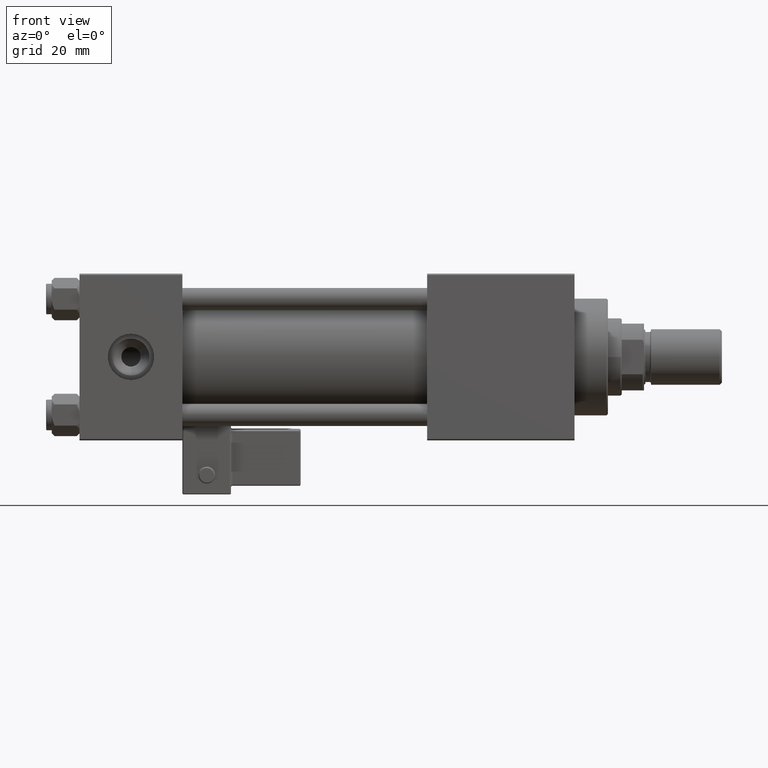
[diagram: clean part render]
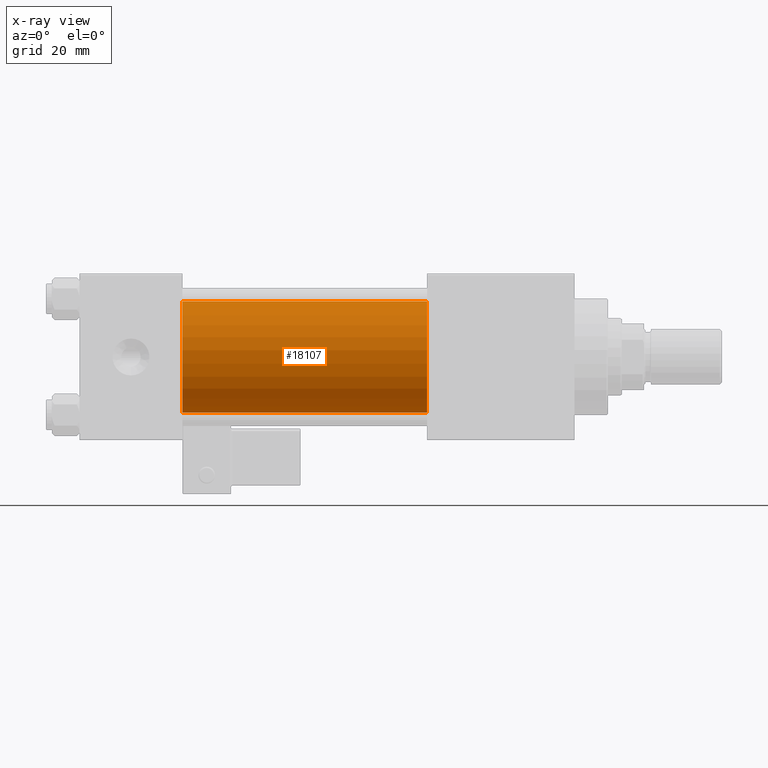
[diagram: x-ray — body ghosted, one internal face saturated and labeled with its STEP entity id]
A machine part, front view, then the same camera in x-ray: the body is ghosted and one INTERNAL B-rep face — a face not visible from any outside direction — is saturated and labeled: STEP entity #18107.
In plain terms, the highlighted cylindrical surface (partial cylindrical patch) has radius 20 mm, axis along (-1, -0, -0).
Its self-contained STEP definition (entity closure, byte-faithful):
#1995 = VERTEX_POINT ( 'NONE', #15800 ) ;
#4890 = EDGE_CURVE ( 'NONE', #8780, #49778, #27839, .T. ) ;
#6723 = CYLINDRICAL_SURFACE ( 'NONE', #21969, 20.00000000000000000 ) ;
#7074 = ORIENTED_EDGE ( 'NONE', *, *, #4890, .T. ) ;
#7643 = CARTESIAN_POINT ( 'NONE',  ( 125.0000000000000000, -2.602085213965210642E-15, 20.00000000000000000 ) ) ;
#8086 = DIRECTION ( 'NONE',  ( 0.000000000000000000, 0.000000000000000000, -1.000000000000000000 ) ) ;
#8780 = VERTEX_POINT ( 'NONE', #7643 ) ;
#8995 = DIRECTION ( 'NONE',  ( -1.000000000000000000, -0.000000000000000000, -0.000000000000000000 ) ) ;
#12078 = ORIENTED_EDGE ( 'NONE', *, *, #50577, .T. ) ;
#15800 = CARTESIAN_POINT ( 'NONE',  ( 37.00000000000000000, -1.527916156705042519E-16, -20.00000000000000000 ) ) ;
#17025 = CARTESIAN_POINT ( 'NONE',  ( 125.0000000000000000, -2.602085213965210642E-15, 20.00000000000000000 ) ) ;
#17953 = CARTESIAN_POINT ( 'NONE',  ( 125.0000000000000000, -1.527916156705042519E-16, -20.00000000000000000 ) ) ;
#18107 = ADVANCED_FACE ( 'NONE', ( #38226 ), #6723, .F. ) ;
#20194 = DIRECTION ( 'NONE',  ( 1.000000000000000000, 0.000000000000000000, 0.000000000000000000 ) ) ;
#21965 = CARTESIAN_POINT ( 'NONE',  ( 125.0000000000000000, -1.527916156705042519E-16, -20.00000000000000000 ) ) ;
#21969 = AXIS2_PLACEMENT_3D ( 'NONE', #42225, #35033, #26222 ) ;
#22237 = LINE ( 'NONE', #21965, #46019 ) ;
#25260 = DIRECTION ( 'NONE',  ( 0.000000000000000000, 0.000000000000000000, -1.000000000000000000 ) ) ;
#26222 = DIRECTION ( 'NONE',  ( 0.000000000000000000, 0.000000000000000000, 1.000000000000000000 ) ) ;
#27839 = CIRCLE ( 'NONE', #39810, 20.00000000000000000 ) ;
#28293 = ORIENTED_EDGE ( 'NONE', *, *, #37845, .F. ) ;
#28908 = CARTESIAN_POINT ( 'NONE',  ( 37.00000000000000000, -2.602085213965210642E-15, 0.000000000000000000 ) ) ;
#30127 = ORIENTED_EDGE ( 'NONE', *, *, #40865, .F. ) ;
#31162 = AXIS2_PLACEMENT_3D ( 'NONE', #28908, #48689, #8086 ) ;
#33470 = DIRECTION ( 'NONE',  ( -1.000000000000000000, -0.000000000000000000, -0.000000000000000000 ) ) ;
#35033 = DIRECTION ( 'NONE',  ( -1.000000000000000000, -0.000000000000000000, -0.000000000000000000 ) ) ;
#37845 = EDGE_CURVE ( 'NONE', #38606, #1995, #48195, .T. ) ;
#38226 = FACE_OUTER_BOUND ( 'NONE', #50678, .T. ) ;
#38606 = VERTEX_POINT ( 'NONE', #49800 ) ;
#39810 = AXIS2_PLACEMENT_3D ( 'NONE', #45796, #20194, #25260 ) ;
#40865 = EDGE_CURVE ( 'NONE', #8780, #38606, #41060, .T. ) ;
#41060 = LINE ( 'NONE', #17025, #48145 ) ;
#42225 = CARTESIAN_POINT ( 'NONE',  ( 125.0000000000000000, -2.602085213965210642E-15, 0.000000000000000000 ) ) ;
#45796 = CARTESIAN_POINT ( 'NONE',  ( 125.0000000000000000, -2.602085213965210642E-15, 0.000000000000000000 ) ) ;
#46019 = VECTOR ( 'NONE', #33470, 1000.000000000000000 ) ;
#48145 = VECTOR ( 'NONE', #8995, 1000.000000000000000 ) ;
#48195 = CIRCLE ( 'NONE', #31162, 20.00000000000000000 ) ;
#48689 = DIRECTION ( 'NONE',  ( 1.000000000000000000, 0.000000000000000000, 0.000000000000000000 ) ) ;
#49778 = VERTEX_POINT ( 'NONE', #17953 ) ;
#49800 = CARTESIAN_POINT ( 'NONE',  ( 37.00000000000000000, -2.602085213965210642E-15, 20.00000000000000000 ) ) ;
#50577 = EDGE_CURVE ( 'NONE', #49778, #1995, #22237, .T. ) ;
#50678 = EDGE_LOOP ( 'NONE', ( #7074, #12078, #28293, #30127 ) ) ;